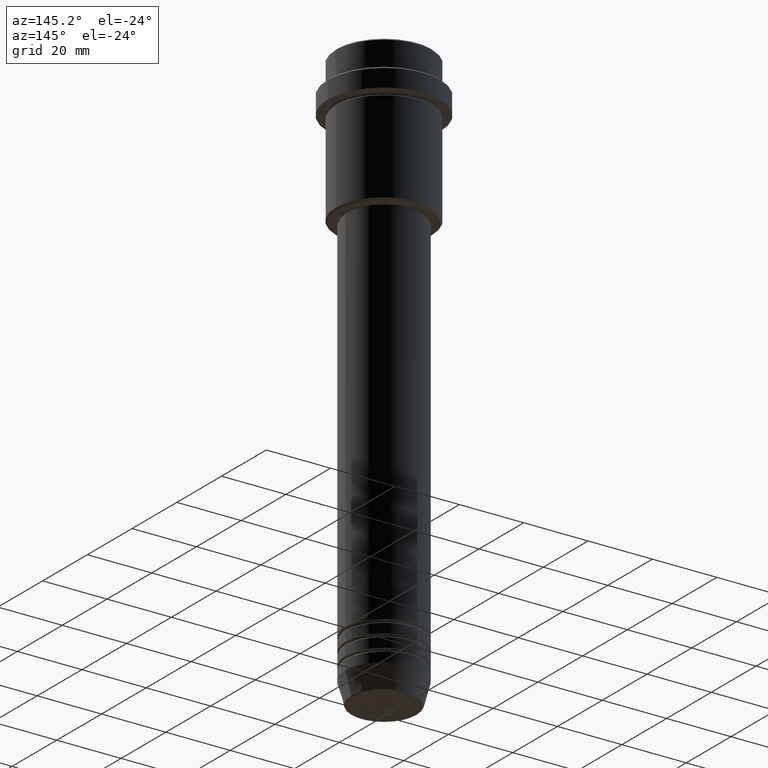
[diagram: clean part render]
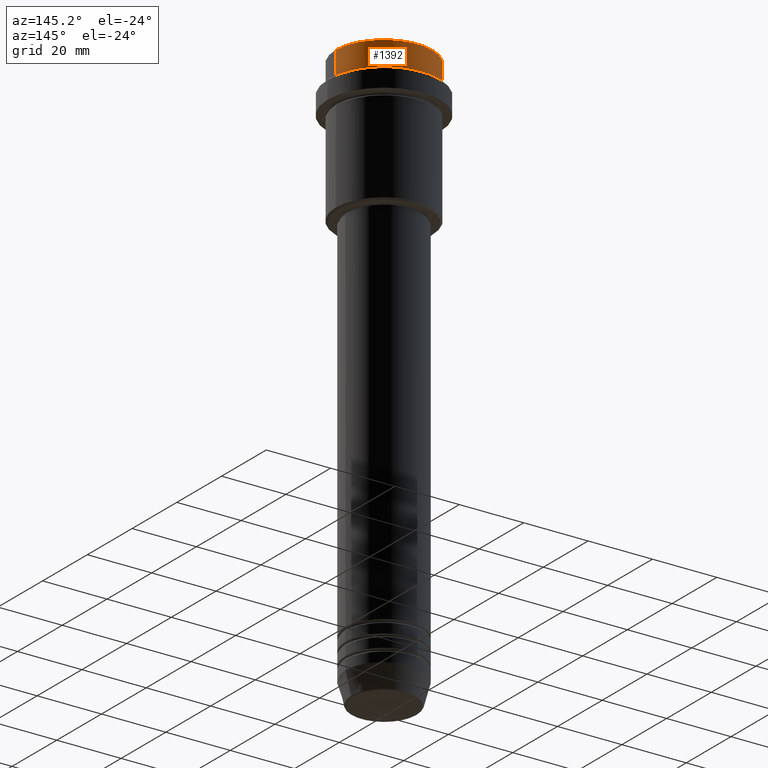
[diagram: same view with one face highlighted and labeled with its STEP entity id]
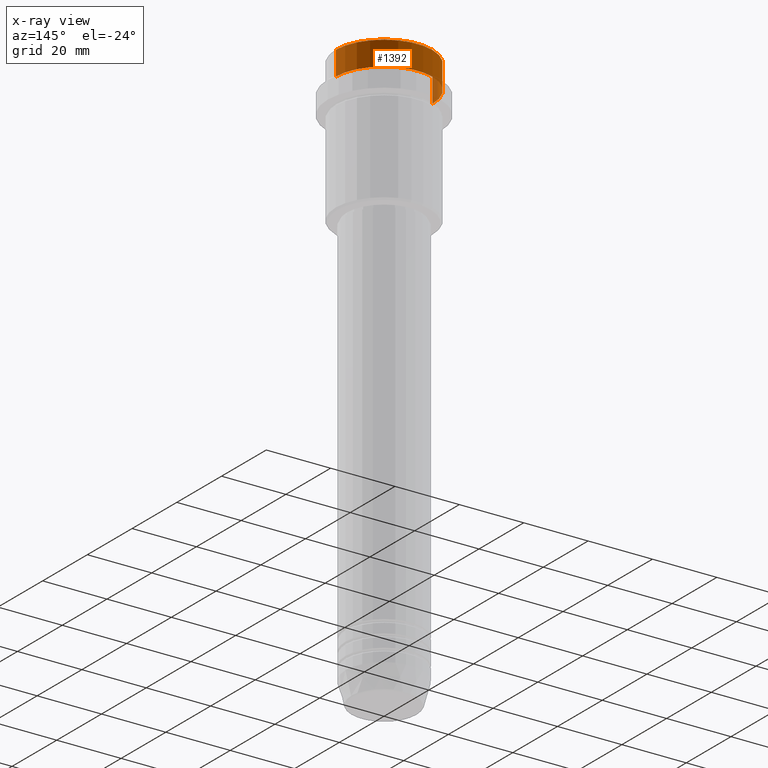
[diagram: x-ray of the same camera — body ghosted, the highlighted face saturated]
A machine part, auxiliary view. The second image highlights one B-rep face of the part: STEP entity #1392.
The next image is the same camera in x-ray: the body ghosted, the highlighted face saturated — about 4% of this face is hidden behind the body in this view.
In plain terms, the highlighted cylindrical surface (partial cylindrical patch) has radius 15 mm, axis along (-0, -0, 1).
Its self-contained STEP definition (entity closure, byte-faithful):
#71 = VERTEX_POINT ( 'NONE', #193 ) ;
#90 = CARTESIAN_POINT ( 'NONE',  ( 0.000000000000000000, 0.000000000000000000, 0.000000000000000000 ) ) ;
#99 = CIRCLE ( 'NONE', #773, 15.00000000000000000 ) ;
#127 = EDGE_CURVE ( 'NONE', #678, #131, #99, .T. ) ;
#131 = VERTEX_POINT ( 'NONE', #1224 ) ;
#135 = EDGE_CURVE ( 'NONE', #678, #71, #832, .T. ) ;
#145 = DIRECTION ( 'NONE',  ( 1.000000000000000000, 0.000000000000000000, 0.000000000000000000 ) ) ;
#180 = LINE ( 'NONE', #298, #428 ) ;
#190 = DIRECTION ( 'NONE',  ( 1.000000000000000000, 0.000000000000000000, 0.000000000000000000 ) ) ;
#193 = CARTESIAN_POINT ( 'NONE',  ( 15.00000000000000000, 0.000000000000000000, -0.4999999999999831246 ) ) ;
#267 = DIRECTION ( 'NONE',  ( -0.000000000000000000, -0.000000000000000000, 1.000000000000000000 ) ) ;
#271 = AXIS2_PLACEMENT_3D ( 'NONE', #90, #316, #190 ) ;
#298 = CARTESIAN_POINT ( 'NONE',  ( -15.00000000000000000, 1.836970198721029589E-15, 0.000000000000000000 ) ) ;
#316 = DIRECTION ( 'NONE',  ( -0.000000000000000000, -0.000000000000000000, 1.000000000000000000 ) ) ;
#375 = CARTESIAN_POINT ( 'NONE',  ( 15.00000000000000000, 0.000000000000000000, -7.999999999999998224 ) ) ;
#408 = ORIENTED_EDGE ( 'NONE', *, *, #1254, .T. ) ;
#421 = FACE_OUTER_BOUND ( 'NONE', #463, .T. ) ;
#428 = VECTOR ( 'NONE', #814, 1000.000000000000000 ) ;
#463 = EDGE_LOOP ( 'NONE', ( #600, #408, #650, #1332 ) ) ;
#485 = CARTESIAN_POINT ( 'NONE',  ( 15.00000000000000000, 0.000000000000000000, 0.000000000000000000 ) ) ;
#495 = CARTESIAN_POINT ( 'NONE',  ( 0.000000000000000000, 0.000000000000000000, -7.999999999999998224 ) ) ;
#531 = CARTESIAN_POINT ( 'NONE',  ( -15.00000000000000000, 1.836970198721029589E-15, -0.4999999999999831246 ) ) ;
#555 = CIRCLE ( 'NONE', #1142, 15.00000000000000000 ) ;
#572 = EDGE_CURVE ( 'NONE', #1343, #71, #555, .T. ) ;
#600 = ORIENTED_EDGE ( 'NONE', *, *, #127, .T. ) ;
#632 = CYLINDRICAL_SURFACE ( 'NONE', #271, 15.00000000000000000 ) ;
#650 = ORIENTED_EDGE ( 'NONE', *, *, #572, .T. ) ;
#655 = CARTESIAN_POINT ( 'NONE',  ( 0.000000000000000000, 0.000000000000000000, -0.4999999999999831246 ) ) ;
#678 = VERTEX_POINT ( 'NONE', #375 ) ;
#773 = AXIS2_PLACEMENT_3D ( 'NONE', #495, #801, #1251 ) ;
#800 = DIRECTION ( 'NONE',  ( 0.000000000000000000, 0.000000000000000000, -1.000000000000000000 ) ) ;
#801 = DIRECTION ( 'NONE',  ( -0.000000000000000000, -0.000000000000000000, 1.000000000000000000 ) ) ;
#804 = VECTOR ( 'NONE', #267, 1000.000000000000000 ) ;
#814 = DIRECTION ( 'NONE',  ( -0.000000000000000000, -0.000000000000000000, 1.000000000000000000 ) ) ;
#832 = LINE ( 'NONE', #485, #804 ) ;
#1142 = AXIS2_PLACEMENT_3D ( 'NONE', #655, #800, #145 ) ;
#1224 = CARTESIAN_POINT ( 'NONE',  ( -15.00000000000000000, 1.836970198721029589E-15, -7.999999999999998224 ) ) ;
#1251 = DIRECTION ( 'NONE',  ( 1.000000000000000000, 0.000000000000000000, 0.000000000000000000 ) ) ;
#1254 = EDGE_CURVE ( 'NONE', #131, #1343, #180, .T. ) ;
#1332 = ORIENTED_EDGE ( 'NONE', *, *, #135, .F. ) ;
#1343 = VERTEX_POINT ( 'NONE', #531 ) ;
#1392 = ADVANCED_FACE ( 'NONE', ( #421 ), #632, .T. ) ;